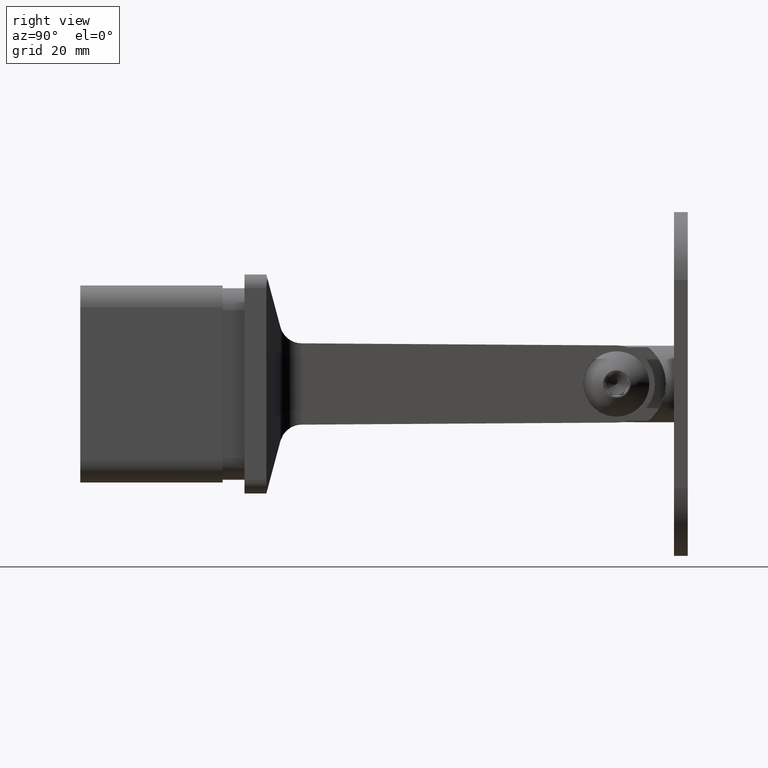
[diagram: clean part render]
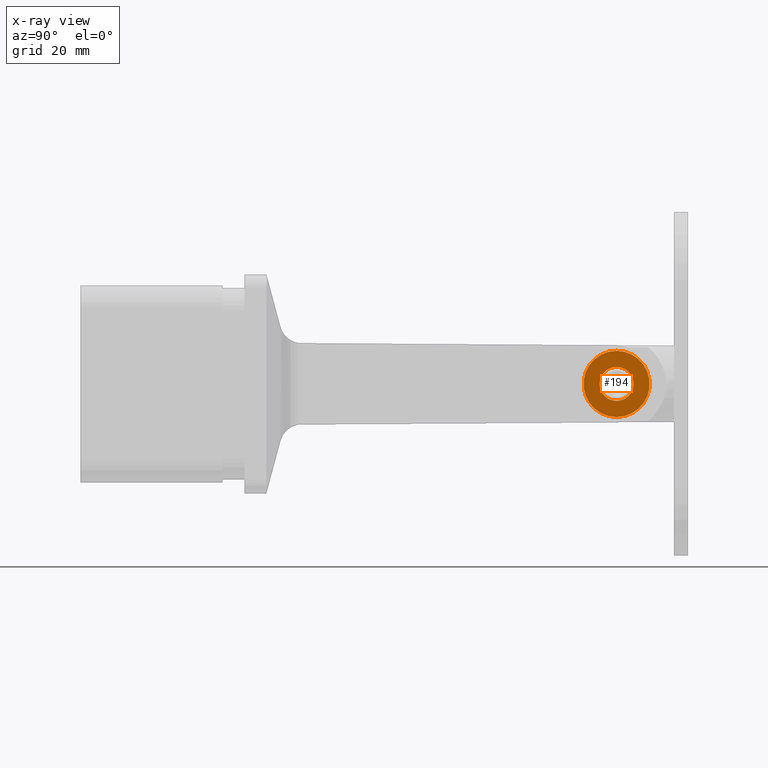
[diagram: x-ray — body ghosted, one internal face saturated and labeled with its STEP entity id]
A machine part, right view, then the same camera in x-ray: the body is ghosted and one INTERNAL B-rep face — a face not visible from any outside direction — is saturated and labeled: STEP entity #194.
In plain terms, the highlighted planar face has unit normal (-1, 0, 0).
Its self-contained STEP definition (entity closure, byte-faithful):
#194 = ADVANCED_FACE ( 'NONE', ( #1656, #3962 ), #14476, .F. ) ;
#440 = VERTEX_POINT ( 'NONE', #11177 ) ;
#1656 = FACE_OUTER_BOUND ( 'NONE', #11539, .T. ) ;
#1667 = ORIENTED_EDGE ( 'NONE', *, *, #9624, .T. ) ;
#1890 = DIRECTION ( 'NONE',  ( -1.000000000000000000, -0.000000000000000000, -0.000000000000000000 ) ) ;
#2645 = DIRECTION ( 'NONE',  ( -1.000000000000000000, 0.000000000000000000, -0.000000000000000000 ) ) ;
#3232 = EDGE_CURVE ( 'NONE', #5380, #5380, #12851, .T. ) ;
#3267 = CARTESIAN_POINT ( 'NONE',  ( 4.389126016432540744, 68.00000000000000000, 0.000000000000000000 ) ) ;
#3962 = FACE_BOUND ( 'NONE', #6487, .T. ) ;
#3982 = CARTESIAN_POINT ( 'NONE',  ( 4.389126016432540744, 61.94999999999999574, 0.000000000000000000 ) ) ;
#5201 = CARTESIAN_POINT ( 'NONE',  ( 4.389126016432540744, 68.00000000000000000, 0.000000000000000000 ) ) ;
#5380 = VERTEX_POINT ( 'NONE', #14799 ) ;
#5510 = DIRECTION ( 'NONE',  ( 0.000000000000000000, 0.000000000000000000, 1.000000000000000000 ) ) ;
#5858 = ORIENTED_EDGE ( 'NONE', *, *, #3232, .F. ) ;
#6487 = EDGE_LOOP ( 'NONE', ( #1667 ) ) ;
#8159 = DIRECTION ( 'NONE',  ( 0.000000000000000000, 0.000000000000000000, 1.000000000000000000 ) ) ;
#8184 = CIRCLE ( 'NONE', #14890, 3.100000000000005418 ) ;
#9624 = EDGE_CURVE ( 'NONE', #440, #440, #8184, .T. ) ;
#11177 = CARTESIAN_POINT ( 'NONE',  ( 4.389126016432540744, 68.00000000000000000, 3.100000000000005418 ) ) ;
#11539 = EDGE_LOOP ( 'NONE', ( #5858 ) ) ;
#11811 = AXIS2_PLACEMENT_3D ( 'NONE', #5201, #1890, #5510 ) ;
#11975 = AXIS2_PLACEMENT_3D ( 'NONE', #3982, #2645, #13633 ) ;
#12851 = CIRCLE ( 'NONE', #11811, 6.050000000000006928 ) ;
#13633 = DIRECTION ( 'NONE',  ( -0.000000000000000000, 0.000000000000000000, 1.000000000000000000 ) ) ;
#14476 = PLANE ( 'NONE',  #11975 ) ;
#14799 = CARTESIAN_POINT ( 'NONE',  ( 4.389126016432540744, 68.00000000000000000, 6.050000000000006928 ) ) ;
#14890 = AXIS2_PLACEMENT_3D ( 'NONE', #3267, #15407, #8159 ) ;
#15407 = DIRECTION ( 'NONE',  ( -1.000000000000000000, -0.000000000000000000, -0.000000000000000000 ) ) ;